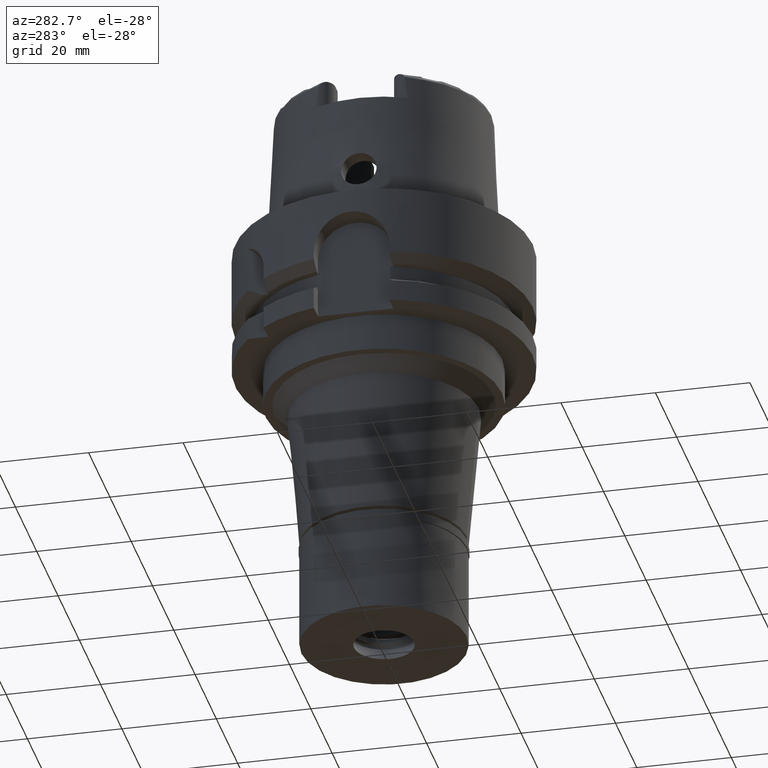
[diagram: clean part render]
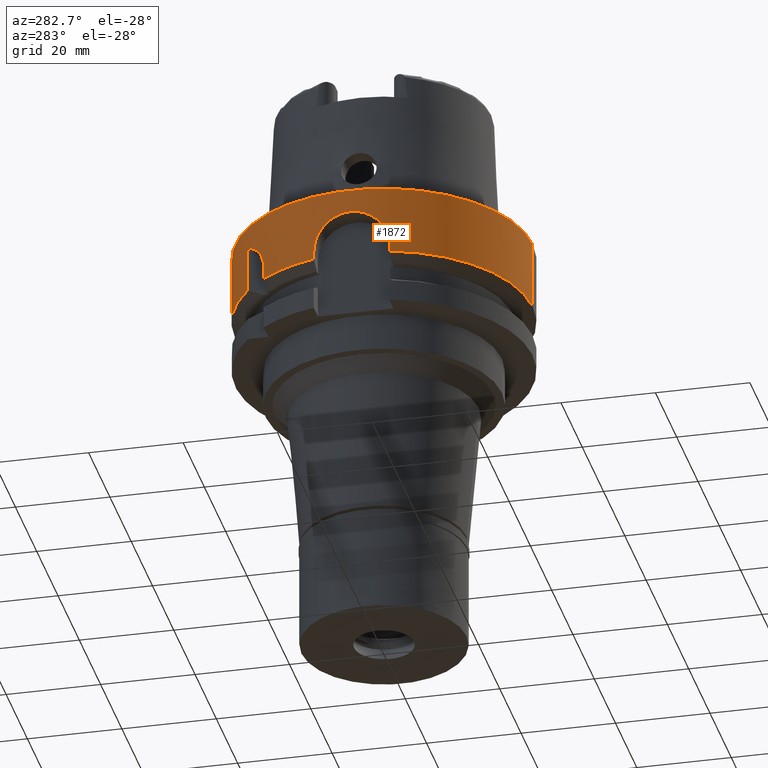
[diagram: same view with one face highlighted and labeled with its STEP entity id]
A machine part, auxiliary view. The second image highlights one B-rep face of the part: STEP entity #1872.
In plain terms, the highlighted cylindrical surface (partial cylindrical patch) has radius 31.5 mm, axis along (0, 0, 1).
Its self-contained STEP definition (entity closure, byte-faithful):
#85 = CARTESIAN_POINT ( 'NONE',  ( -21.51836336885028444, 23.01946672605586386, -5.799111690787444040 ) ) ;
#116 = EDGE_LOOP ( 'NONE', ( #5161, #2107, #525, #1082, #1738, #3224, #4632, #2232, #1563, #4421, #5382, #3507 ) ) ;
#127 = CARTESIAN_POINT ( 'NONE',  ( -31.12249084679541866, 4.863351863556407473, -6.646597155387998335 ) ) ;
#129 = CYLINDRICAL_SURFACE ( 'NONE', #5151, 31.50000000000000000 ) ;
#155 = VERTEX_POINT ( 'NONE', #2854 ) ;
#156 = AXIS2_PLACEMENT_3D ( 'NONE', #4832, #4715, #4742 ) ;
#171 = VECTOR ( 'NONE', #3277, 1000.000000000000000 ) ;
#186 = CARTESIAN_POINT ( 'NONE',  ( -31.15505802711993155, 4.650159909552773918, -6.489012759518352880 ) ) ;
#235 = CARTESIAN_POINT ( 'NONE',  ( -30.66829437905593636, -7.191777482552207168, -9.485901320401259440 ) ) ;
#254 = CARTESIAN_POINT ( 'NONE',  ( 0.0000000000000000000, -31.50000000000000000, 0.0000000000000000000 ) ) ;
#261 = CARTESIAN_POINT ( 'NONE',  ( -31.36478180881584876, -2.918134935663076135, -5.550077343907256378 ) ) ;
#289 = CARTESIAN_POINT ( 'NONE',  ( -31.42616244446166363, -2.180633170701512746, -5.295127870797713854 ) ) ;
#294 = AXIS2_PLACEMENT_3D ( 'NONE', #1684, #1660, #3833 ) ;
#392 = CARTESIAN_POINT ( 'NONE',  ( -24.31741330294028103, 20.02299288716042724, -11.41278700452349071 ) ) ;
#423 = CARTESIAN_POINT ( 'NONE',  ( -22.71655124700858508, 21.82280581521483143, -7.024865124920250281 ) ) ;
#428 = CARTESIAN_POINT ( 'NONE',  ( -30.46719547316000032, -8.000000000000000000, -13.00000000000000000 ) ) ;
#449 = CARTESIAN_POINT ( 'NONE',  ( -22.16545731842169431, 22.38176731029866673, -6.416422733381462074 ) ) ;
#502 = CARTESIAN_POINT ( 'NONE',  ( -22.42393119323869399, 22.12296566132537023, -6.683206092459702319 ) ) ;
#525 = ORIENTED_EDGE ( 'NONE', *, *, #4533, .T. ) ;
#597 = EDGE_CURVE ( 'NONE', #2760, #2497, #3126, .T. ) ;
#603 = CARTESIAN_POINT ( 'NONE',  ( -30.66617645225339217, 7.202626994896542456, -9.478632443075117209 ) ) ;
#661 = CIRCLE ( 'NONE', #294, 31.50000000000000711 ) ;
#690 = AXIS2_PLACEMENT_3D ( 'NONE', #4737, #1313, #3850 ) ;
#723 = CARTESIAN_POINT ( 'NONE',  ( -30.59373675492765443, -7.502246412072069326, -10.20989868051687921 ) ) ;
#823 = CARTESIAN_POINT ( 'NONE',  ( -31.24713635873542472, -3.984901092317276294, -6.061804289991595596 ) ) ;
#830 = EDGE_CURVE ( 'NONE', #4958, #3414, #4469, .T. ) ;
#845 = CARTESIAN_POINT ( 'NONE',  ( -24.23762488949646610, 20.11943627621659303, -10.72360843140160647 ) ) ;
#882 = CARTESIAN_POINT ( 'NONE',  ( -31.44966231047007810, 1.798303139456230992, -5.200421182019743682 ) ) ;
#910 = CARTESIAN_POINT ( 'NONE',  ( -24.33618704727999926, 20.00000000000000000, -12.11171390365999834 ) ) ;
#938 = CARTESIAN_POINT ( 'NONE',  ( -24.12938251978774673, 20.24902381770646542, -10.13074365043908998 ) ) ;
#958 = CARTESIAN_POINT ( 'NONE',  ( -30.46719550026999812, 7.999999896764000695, -14.62250186240000005 ) ) ;
#968 = CARTESIAN_POINT ( 'NONE',  ( -22.22169668657766550, 22.32599394469176346, -6.471750594944307267 ) ) ;
#1045 = CARTESIAN_POINT ( 'NONE',  ( -31.28954085692742382, 3.637070170602349162, -5.873293608130482291 ) ) ;
#1059 = EDGE_CURVE ( 'NONE', #2760, #1730, #1465, .T. ) ;
#1074 = CARTESIAN_POINT ( 'NONE',  ( -30.46719547316397936, 8.000000000001037392, -12.74141073774380573 ) ) ;
#1082 = ORIENTED_EDGE ( 'NONE', *, *, #1059, .F. ) ;
#1124 = CARTESIAN_POINT ( 'NONE',  ( -31.49999281968114673, -0.2605282759329713982, -5.000027237282318460 ) ) ;
#1151 = CARTESIAN_POINT ( 'NONE',  ( -31.48718090485463961, 1.033466574629839041, -5.050045388238334709 ) ) ;
#1196 = VECTOR ( 'NONE', #4596, 1000.000000000000000 ) ;
#1260 = VERTEX_POINT ( 'NONE', #3149 ) ;
#1306 = CARTESIAN_POINT ( 'NONE',  ( -31.15515489152439699, -4.653652403047093600, -6.487463098666814254 ) ) ;
#1313 = DIRECTION ( 'NONE',  ( 0.0000000000000000000, 0.0000000000000000000, -1.000000000000000000 ) ) ;
#1383 = CARTESIAN_POINT ( 'NONE',  ( -20.81549774998583757, 23.66599352156026370, -5.345270317906431146 ) ) ;
#1457 = CARTESIAN_POINT ( 'NONE',  ( -31.02187907461123473, 5.470772986012665484, -7.156983136261470868 ) ) ;
#1465 = LINE ( 'NONE', #3237, #5344 ) ;
#1515 = CARTESIAN_POINT ( 'NONE',  ( -30.53486776371383016, 7.738073463291178733, -10.95272763079205447 ) ) ;
#1520 = VECTOR ( 'NONE', #2637, 1000.000000000000000 ) ;
#1536 = LINE ( 'NONE', #2466, #1826 ) ;
#1543 = CARTESIAN_POINT ( 'NONE',  ( -31.32926138261103688, -3.284444989566721151, -5.700584998822027849 ) ) ;
#1563 = ORIENTED_EDGE ( 'NONE', *, *, #3943, .T. ) ;
#1650 = DIRECTION ( 'NONE',  ( 0.0000000000000000000, 0.0000000000000000000, 1.000000000000000000 ) ) ;
#1660 = DIRECTION ( 'NONE',  ( 0.0000000000000000000, 0.0000000000000000000, 1.000000000000000000 ) ) ;
#1684 = CARTESIAN_POINT ( 'NONE',  ( 0.0000000000000000000, 0.0000000000000000000, -14.62250092523999889 ) ) ;
#1688 = EDGE_CURVE ( 'NONE', #1260, #4311, #4887, .T. ) ;
#1696 = CARTESIAN_POINT ( 'NONE',  ( -24.33618704728001347, 20.00000000000000355, -11.76177398085572179 ) ) ;
#1704 = CARTESIAN_POINT ( 'NONE',  ( -30.46719547316398646, -8.000000000001026734, -12.48317114868535960 ) ) ;
#1727 = CARTESIAN_POINT ( 'NONE',  ( -24.03292256434819762, 20.36379620816689595, -9.699742460835476976 ) ) ;
#1730 = VERTEX_POINT ( 'NONE', #958 ) ;
#1738 = ORIENTED_EDGE ( 'NONE', *, *, #597, .T. ) ;
#1755 = CARTESIAN_POINT ( 'NONE',  ( -22.11781925483933264, 22.42882634155474975, -6.370443669978741674 ) ) ;
#1801 = DIRECTION ( 'NONE',  ( 0.0000000000000000000, 1.000000000000000000, 0.0000000000000000000 ) ) ;
#1826 = VECTOR ( 'NONE', #2046, 1000.000000000000000 ) ;
#1827 = CARTESIAN_POINT ( 'NONE',  ( -30.46719547316000032, 8.000000000000000000, -13.00000000000000000 ) ) ;
#1850 = CARTESIAN_POINT ( 'NONE',  ( -31.24778611378244264, 3.985028085241764995, -6.058127273308139493 ) ) ;
#1872 = ADVANCED_FACE ( 'NONE', ( #2304 ), #129, .T. ) ;
#1898 = LINE ( 'NONE', #2778, #1196 ) ;
#1919 = CARTESIAN_POINT ( 'NONE',  ( -31.32884523643254226, 3.281432308531917919, -5.702786093823632996 ) ) ;
#1976 = CARTESIAN_POINT ( 'NONE',  ( -30.64173940436829469, -7.303713858855889640, -9.725163879022158397 ) ) ;
#2000 = CARTESIAN_POINT ( 'NONE',  ( -31.26152885555568517, -3.870459631734698203, -5.997300790415236449 ) ) ;
#2046 = DIRECTION ( 'NONE',  ( -0.0000000000000000000, -0.0000000000000000000, -1.000000000000000000 ) ) ;
#2107 = ORIENTED_EDGE ( 'NONE', *, *, #830, .F. ) ;
#2133 = CARTESIAN_POINT ( 'NONE',  ( -30.85032093071377091, -6.371617778921379482, -8.133432859172732066 ) ) ;
#2157 = CARTESIAN_POINT ( 'NONE',  ( -22.60291036793194408, 21.94058342135022954, -6.885205564120346011 ) ) ;
#2161 = VECTOR ( 'NONE', #3232, 1000.000000000000114 ) ;
#2186 = CARTESIAN_POINT ( 'NONE',  ( -23.53769548311542437, 20.93402649047466824, -8.358664465438264912 ) ) ;
#2212 = CARTESIAN_POINT ( 'NONE',  ( -20.00000000000000000, 24.33618704727999926, -5.000000000001000089 ) ) ;
#2232 = ORIENTED_EDGE ( 'NONE', *, *, #4439, .F. ) ;
#2279 = CARTESIAN_POINT ( 'NONE',  ( -31.21807093783880660, 4.210852299023346568, -6.192810637456556577 ) ) ;
#2304 = FACE_OUTER_BOUND ( 'NONE', #116, .T. ) ;
#2387 = CARTESIAN_POINT ( 'NONE',  ( -30.46719547316000032, 8.000000000000000000, -13.00000000000000000 ) ) ;
#2405 = CIRCLE ( 'NONE', #690, 31.50000000000000000 ) ;
#2419 = EDGE_CURVE ( 'NONE', #3414, #4491, #3649, .T. ) ;
#2420 = CARTESIAN_POINT ( 'NONE',  ( -30.51876128078908579, -7.801143990766280290, -11.20858996874534519 ) ) ;
#2466 = CARTESIAN_POINT ( 'NONE',  ( -20.00000000000000000, 24.33618704727589588, 0.0000000000000000000 ) ) ;
#2469 = CARTESIAN_POINT ( 'NONE',  ( 0.0000000000000000000, 31.50000000000000000, 0.0000000000000000000 ) ) ;
#2497 = VERTEX_POINT ( 'NONE', #3388 ) ;
#2536 = CARTESIAN_POINT ( 'NONE',  ( -20.00000000000000000, 24.33618704727999926, -5.000000000001000089 ) ) ;
#2572 = CARTESIAN_POINT ( 'NONE',  ( -23.23364850592203013, 21.27232523972957878, -7.766570452824864468 ) ) ;
#2631 = CARTESIAN_POINT ( 'NONE',  ( -23.69447380101398437, 20.75659041549797479, -8.711152243239670412 ) ) ;
#2637 = DIRECTION ( 'NONE',  ( 9.894060569838856819E-07, 1.203919407603981730E-06, 0.9999999999987858601 ) ) ;
#2710 = CARTESIAN_POINT ( 'NONE',  ( -30.48347368812357416, 7.937788957678222346, -11.97101903903848452 ) ) ;
#2716 = EDGE_CURVE ( 'NONE', #1260, #2497, #4859, .T. ) ;
#2723 = CARTESIAN_POINT ( 'NONE',  ( 0.0000000000000000000, 31.50000000000000000, 0.0000000000000000000 ) ) ;
#2760 = VERTEX_POINT ( 'NONE', #1827 ) ;
#2763 = CIRCLE ( 'NONE', #4773, 31.50000000000000000 ) ;
#2765 = CARTESIAN_POINT ( 'NONE',  ( -30.51893368094428993, 7.800472392784302045, -11.20535269564873282 ) ) ;
#2778 = CARTESIAN_POINT ( 'NONE',  ( 0.0000000000000000000, -31.50000000000000000, 0.0000000000000000000 ) ) ;
#2824 = CARTESIAN_POINT ( 'NONE',  ( -31.34136434296490847, 3.159692071388556567, -5.649299241988270381 ) ) ;
#2849 = CARTESIAN_POINT ( 'NONE',  ( -31.30329594184335562, -3.522533146456674036, -5.812390860449022867 ) ) ;
#2854 = CARTESIAN_POINT ( 'NONE',  ( 0.0000000000000000000, 31.50000000000000000, -14.62250092523999889 ) ) ;
#2878 = CARTESIAN_POINT ( 'NONE',  ( -31.39671493540420499, -2.551760372409574540, -5.416713628348142073 ) ) ;
#2904 = LINE ( 'NONE', #2469, #171 ) ;
#2988 = CARTESIAN_POINT ( 'NONE',  ( -31.48408220032492721, -1.033854126907871374, -5.062799230808712636 ) ) ;
#3040 = CARTESIAN_POINT ( 'NONE',  ( -24.17250346381804604, 20.19756269221325695, -10.34108878168206225 ) ) ;
#3047 = CARTESIAN_POINT ( 'NONE',  ( -31.47467690226260473, -1.288642860898565168, -5.100161930338198424 ) ) ;
#3072 = CARTESIAN_POINT ( 'NONE',  ( -23.75834693614840987, 20.68340060407201619, -8.871548496137195983 ) ) ;
#3126 = B_SPLINE_CURVE_WITH_KNOTS ( 'NONE', 3,
 ( #2387, #1074, #3689, #2710, #5427, #2765, #1515, #4479, #4505, #603, #3630, #3258, #5000, #3570, #5370, #1457, #3201, #4942, #127, #186, #3601, #2279, #1850, #1045, #4536, #1919, #2824, #5301, #5451, #3768, #882, #1151, #3909, #1124, #4731, #2988, #3047, #3443, #289, #2878, #5182, #261, #1543, #2849, #2000, #823, #3716, #4155, #1306, #3280, #4639, #5054, #5593, #2133, #4788, #5471, #235, #1976, #723, #5026, #4611, #2420, #4325, #1704, #428 ),
 .UNSPECIFIED., .F., .F.,
 ( 4, 2, 2, 2, 2, 2, 2, 2, 2, 2, 2, 2, 2, 2, 2, 2, 2, 2, 2, 1, 2, 2, 2, 2, 2, 2, 2, 2, 2, 2, 2, 2, 4 ),
 ( 0.0000000000000000000, 0.03125000000000004857, 0.06250000000000009714, 0.09375000000000013878, 0.1250000000000001943, 0.1875000000000002220, 0.2187500000000002776, 0.2500000000000002220, 0.2812500000000002220, 0.2968750000000001665, 0.3125000000000001665, 0.3437500000000001665, 0.3593750000000001110, 0.3750000000000000555, 0.4062500000000000000, 0.4374999999999999445, 0.4999999999999997780, 0.5312499999999996669, 0.5624999999999996669, 0.5937499999999995559, 0.6093749999999995559, 0.6249999999999994449, 0.6562499999999994449, 0.6718749999999994449, 0.6874999999999995559, 0.7187499999999995559, 0.7499999999999995559, 0.8124999999999995559, 0.8437499999999996669, 0.8749999999999996669, 0.9062499999999997780, 0.9374999999999997780, 1.000000000000000000 ),
 .UNSPECIFIED. ) ;
#3127 = CARTESIAN_POINT ( 'NONE',  ( -24.26109206992110501, 20.09112463490039957, -10.89517135139225346 ) ) ;
#3149 = CARTESIAN_POINT ( 'NONE',  ( -30.46719534852000066, -8.000000474691999486, -14.62249661605000206 ) ) ;
#3177 = CARTESIAN_POINT ( 'NONE',  ( 0.0000000000000000000, 0.0000000000000000000, 0.0000000000000000000 ) ) ;
#3187 = CARTESIAN_POINT ( 'NONE',  ( -24.33618704727999926, 20.00000000000000000, -12.11171390365999834 ) ) ;
#3201 = CARTESIAN_POINT ( 'NONE',  ( -31.05592143672184235, 5.274725093403575649, -6.979327917317402097 ) ) ;
#3224 = ORIENTED_EDGE ( 'NONE', *, *, #2716, .F. ) ;
#3232 = DIRECTION ( 'NONE',  ( -7.682079355401649756E-08, 2.925685304341864880E-07, 0.9999999999999541478 ) ) ;
#3237 = CARTESIAN_POINT ( 'NONE',  ( -30.46719547316000032, 8.000000000000000000, -13.00000000000000000 ) ) ;
#3258 = CARTESIAN_POINT ( 'NONE',  ( -30.81885635103455101, 6.516947870096323037, -8.352431642886058327 ) ) ;
#3268 = CARTESIAN_POINT ( 'NONE',  ( 0.0000000000000000000, -31.50000000000000000, -14.62250092523999889 ) ) ;
#3277 = DIRECTION ( 'NONE',  ( 0.0000000000000000000, 2.672583210395999918E-14, -1.000000000000000000 ) ) ;
#3280 = CARTESIAN_POINT ( 'NONE',  ( -31.12245664774485476, -4.866791469593102271, -6.645082546111226840 ) ) ;
#3283 = EDGE_CURVE ( 'NONE', #4242, #155, #2904, .T. ) ;
#3388 = CARTESIAN_POINT ( 'NONE',  ( -30.46719547316000032, -8.000000000000000000, -13.00000000000000000 ) ) ;
#3414 = VERTEX_POINT ( 'NONE', #3187 ) ;
#3443 = CARTESIAN_POINT ( 'NONE',  ( -31.44949716578621235, -1.801392390339644045, -5.201080300986020255 ) ) ;
#3463 = CARTESIAN_POINT ( 'NONE',  ( -22.14115509481728949, 22.40579017820522978, -6.392890421466240980 ) ) ;
#3502 = CARTESIAN_POINT ( 'NONE',  ( -24.33618953147999875, 19.99999697720000214, -14.62251175989000096 ) ) ;
#3507 = ORIENTED_EDGE ( 'NONE', *, *, #5342, .F. ) ;
#3570 = CARTESIAN_POINT ( 'NONE',  ( -30.91893340381841426, 6.024844406121204088, -7.730123615628631484 ) ) ;
#3601 = CARTESIAN_POINT ( 'NONE',  ( -31.17125954396366438, 4.540361878075952262, -6.412027064724151515 ) ) ;
#3630 = CARTESIAN_POINT ( 'NONE',  ( -30.72362744162693815, 6.956923324080015902, -9.014860810078570097 ) ) ;
#3649 = B_SPLINE_CURVE_WITH_KNOTS ( 'NONE', 3,
 ( #910, #1696, #392, #3127, #845, #4782, #3040, #5266, #938, #4866, #1727, #3868, #3072, #2631, #4818, #2186, #4436, #4405, #4381, #3931, #2572, #4350, #423, #2157, #502, #3985, #968, #449, #3463, #5201, #1755, #85, #1383, #2212 ),
 .UNSPECIFIED., .F., .F.,
 ( 4, 2, 2, 1, 2, 2, 2, 2, 1, 1, 2, 2, 2, 2, 1, 1, 1, 2, 2, 4 ),
 ( 0.0000000000000000000, 0.1249999999999912292, 0.1874999999999868439, 0.2187499999999841238, 0.2343749999999830691, 0.2499999999999819866, 0.3749999999999756861, 0.4374999999999730216, 0.4687499999999716338, 0.4843749999999710232, 0.4921874999999709122, 0.4999999999999708011, 0.6249999999999754641, 0.6874999999999776845, 0.7187499999999789058, 0.7343749999999792388, 0.7421874999999791278, 0.7460937499999793499, 0.7499999999999796829, 1.000000000000000000 ),
 .UNSPECIFIED. ) ;
#3689 = CARTESIAN_POINT ( 'NONE',  ( -30.47046940401123294, 7.987562577556150956, -12.48389669310026306 ) ) ;
#3716 = CARTESIAN_POINT ( 'NONE',  ( -31.21750876316688306, -4.210714186281836469, -6.196545001652887130 ) ) ;
#3768 = CARTESIAN_POINT ( 'NONE',  ( -31.43404329782898543, 2.052651452584191905, -5.263364843663717707 ) ) ;
#3802 = CARTESIAN_POINT ( 'NONE',  ( -24.33618953147999875, 19.99999697720000214, -14.62251175989000096 ) ) ;
#3833 = DIRECTION ( 'NONE',  ( -0.7725773665802099233, 0.6349206349206079070, 0.0000000000000000000 ) ) ;
#3850 = DIRECTION ( 'NONE',  ( 0.0000000000000000000, -1.000000000000000000, 0.0000000000000000000 ) ) ;
#3868 = CARTESIAN_POINT ( 'NONE',  ( -23.93503632572757667, 20.47927319959853421, -9.361466142434167637 ) ) ;
#3909 = CARTESIAN_POINT ( 'NONE',  ( -31.50001432462713780, 0.5184477200072924452, -4.999946910804735190 ) ) ;
#3931 = CARTESIAN_POINT ( 'NONE',  ( -23.41480056007195998, 21.07124600593025576, -8.112598713316959476 ) ) ;
#3943 = EDGE_CURVE ( 'NONE', #5353, #4242, #2405, .T. ) ;
#3970 = DIRECTION ( 'NONE',  ( 0.0000000000000000000, 1.000000000000000000, 0.0000000000000000000 ) ) ;
#3985 = CARTESIAN_POINT ( 'NONE',  ( -22.33231214187249947, 22.21558574790253004, -6.584077842623448085 ) ) ;
#4034 = CARTESIAN_POINT ( 'NONE',  ( -30.46719534852000066, -8.000000474691999486, -14.62249661605000206 ) ) ;
#4093 = EDGE_CURVE ( 'NONE', #155, #5433, #2763, .T. ) ;
#4155 = CARTESIAN_POINT ( 'NONE',  ( -31.20241978222286861, -4.321057623402265513, -6.266097873782153549 ) ) ;
#4242 = VERTEX_POINT ( 'NONE', #2723 ) ;
#4311 = VERTEX_POINT ( 'NONE', #3268 ) ;
#4325 = CARTESIAN_POINT ( 'NONE',  ( -30.48036049987612728, -7.950356879501093488, -11.97071503445736695 ) ) ;
#4350 = CARTESIAN_POINT ( 'NONE',  ( -23.04043817208193090, 21.48227364186569588, -7.458298265903091639 ) ) ;
#4381 = CARTESIAN_POINT ( 'NONE',  ( -23.42376758412722282, 21.06127751715984431, -8.129929774727198577 ) ) ;
#4405 = CARTESIAN_POINT ( 'NONE',  ( -23.44315732987051959, 21.03969576390301199, -8.167776849869348155 ) ) ;
#4421 = ORIENTED_EDGE ( 'NONE', *, *, #3283, .T. ) ;
#4436 = CARTESIAN_POINT ( 'NONE',  ( -23.47200866698822708, 21.00753865408441357, -8.224708374986786197 ) ) ;
#4439 = EDGE_CURVE ( 'NONE', #5353, #4311, #1898, .T. ) ;
#4469 = LINE ( 'NONE', #3502, #1520 ) ;
#4479 = CARTESIAN_POINT ( 'NONE',  ( -30.57233718637445463, 7.588684288689721669, -10.45425605569719174 ) ) ;
#4491 = VERTEX_POINT ( 'NONE', #2536 ) ;
#4505 = CARTESIAN_POINT ( 'NONE',  ( -30.59375341722014596, 7.502186701450400896, -10.20961224725754590 ) ) ;
#4533 = EDGE_CURVE ( 'NONE', #4958, #1730, #661, .T. ) ;
#4536 = CARTESIAN_POINT ( 'NONE',  ( -31.30298911224988601, 3.519547482586904863, -5.814547616578758849 ) ) ;
#4537 = DIRECTION ( 'NONE',  ( 0.0000000000000000000, 0.0000000000000000000, 1.000000000000000000 ) ) ;
#4596 = DIRECTION ( 'NONE',  ( 0.0000000000000000000, -2.672583210395999918E-14, -1.000000000000000000 ) ) ;
#4611 = CARTESIAN_POINT ( 'NONE',  ( -30.53478131667690576, -7.738413905107353052, -10.95404087153493400 ) ) ;
#4632 = ORIENTED_EDGE ( 'NONE', *, *, #1688, .T. ) ;
#4639 = CARTESIAN_POINT ( 'NONE',  ( -31.05571261456163512, -5.275953089349793679, -6.980406702709331945 ) ) ;
#4709 = CARTESIAN_POINT ( 'NONE',  ( 0.0000000000000000000, 0.0000000000000000000, -14.62250092523999889 ) ) ;
#4715 = DIRECTION ( 'NONE',  ( 0.0000000000000000000, 0.0000000000000000000, 1.000000000000000000 ) ) ;
#4726 = CARTESIAN_POINT ( 'NONE',  ( -20.00001377493000021, 24.33617572673000140, -14.62245154170999939 ) ) ;
#4731 = CARTESIAN_POINT ( 'NONE',  ( -31.49677497998886722, -0.5190878658653886868, -5.012592346184607806 ) ) ;
#4737 = CARTESIAN_POINT ( 'NONE',  ( 0.0000000000000000000, 0.0000000000000000000, 0.0000000000000000000 ) ) ;
#4742 = DIRECTION ( 'NONE',  ( -0.9672125547036138915, -0.2539682539683034701, 0.0000000000000000000 ) ) ;
#4773 = AXIS2_PLACEMENT_3D ( 'NONE', #4709, #1650, #3970 ) ;
#4782 = CARTESIAN_POINT ( 'NONE',  ( -24.19538396473208408, 20.17014702712613783, -10.46826242130354956 ) ) ;
#4788 = CARTESIAN_POINT ( 'NONE',  ( -30.75521152764449795, -6.810977723647229531, -8.795226243400085409 ) ) ;
#4818 = CARTESIAN_POINT ( 'NONE',  ( -23.59119909040027707, 20.87366618610698055, -8.475360389937870664 ) ) ;
#4832 = CARTESIAN_POINT ( 'NONE',  ( 0.0000000000000000000, 0.0000000000000000000, -14.62250092523999889 ) ) ;
#4859 = LINE ( 'NONE', #4034, #2161 ) ;
#4866 = CARTESIAN_POINT ( 'NONE',  ( -24.12064955906022590, 20.25942706280731187, -10.09043965655967945 ) ) ;
#4887 = CIRCLE ( 'NONE', #156, 31.50000000000000000 ) ;
#4942 = CARTESIAN_POINT ( 'NONE',  ( -31.10597520402362193, 4.967801513785831347, -6.727898206207123089 ) ) ;
#4951 = DIRECTION ( 'NONE',  ( -1.670829581307991399E-08, -6.362758323293975329E-08, -0.9999999999999978906 ) ) ;
#4958 = VERTEX_POINT ( 'NONE', #3802 ) ;
#5000 = CARTESIAN_POINT ( 'NONE',  ( -30.85175722333923787, 6.359895374914875887, -8.139646148475570442 ) ) ;
#5026 = CARTESIAN_POINT ( 'NONE',  ( -30.57221970764630825, -7.589156868285300561, -10.45567407901942936 ) ) ;
#5054 = CARTESIAN_POINT ( 'NONE',  ( -31.02184408994428466, -5.471005329722204991, -7.157139608586096990 ) ) ;
#5151 = AXIS2_PLACEMENT_3D ( 'NONE', #3177, #4537, #1801 ) ;
#5161 = ORIENTED_EDGE ( 'NONE', *, *, #2419, .F. ) ;
#5182 = CARTESIAN_POINT ( 'NONE',  ( -31.37578599807788748, -2.797363533052709350, -5.503890397323703887 ) ) ;
#5201 = CARTESIAN_POINT ( 'NONE',  ( -22.12490924858062513, 22.42183186870293099, -6.377242188694665082 ) ) ;
#5266 = CARTESIAN_POINT ( 'NONE',  ( -24.14698290510624545, 20.22803438304589818, -10.21476230398461738 ) ) ;
#5301 = CARTESIAN_POINT ( 'NONE',  ( -31.37653925857092929, 2.796761629676041583, -5.500262300796434189 ) ) ;
#5342 = EDGE_CURVE ( 'NONE', #4491, #5433, #1536, .T. ) ;
#5344 = VECTOR ( 'NONE', #4951, 1000.000000000000114 ) ;
#5353 = VERTEX_POINT ( 'NONE', #254 ) ;
#5370 = CARTESIAN_POINT ( 'NONE',  ( -30.95339523289368699, 5.845824316600885417, -7.532364397224028174 ) ) ;
#5382 = ORIENTED_EDGE ( 'NONE', *, *, #4093, .T. ) ;
#5427 = CARTESIAN_POINT ( 'NONE',  ( -30.49311703776986704, 7.900790839740990279, -11.71738137998058527 ) ) ;
#5433 = VERTEX_POINT ( 'NONE', #4726 ) ;
#5451 = CARTESIAN_POINT ( 'NONE',  ( -31.39751812985976187, 2.551139220174183375, -5.413139625052068027 ) ) ;
#5471 = CARTESIAN_POINT ( 'NONE',  ( -30.72496427306852240, -6.945683112382951663, -9.021600376697296753 ) ) ;
#5593 = CARTESIAN_POINT ( 'NONE',  ( -30.91857264590934307, -6.036448109134062712, -7.723297038441890194 ) ) ;